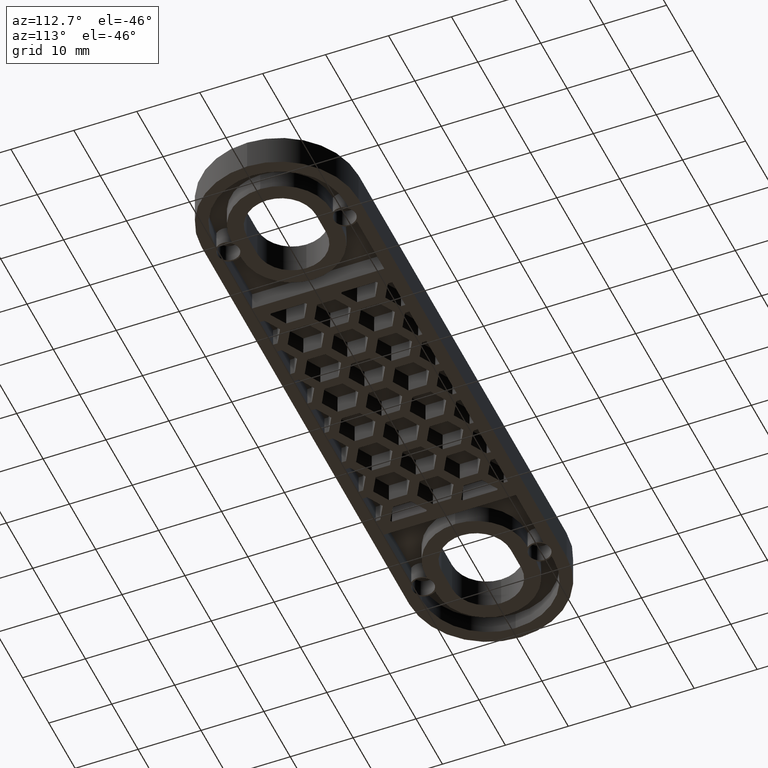
[diagram: clean part render]
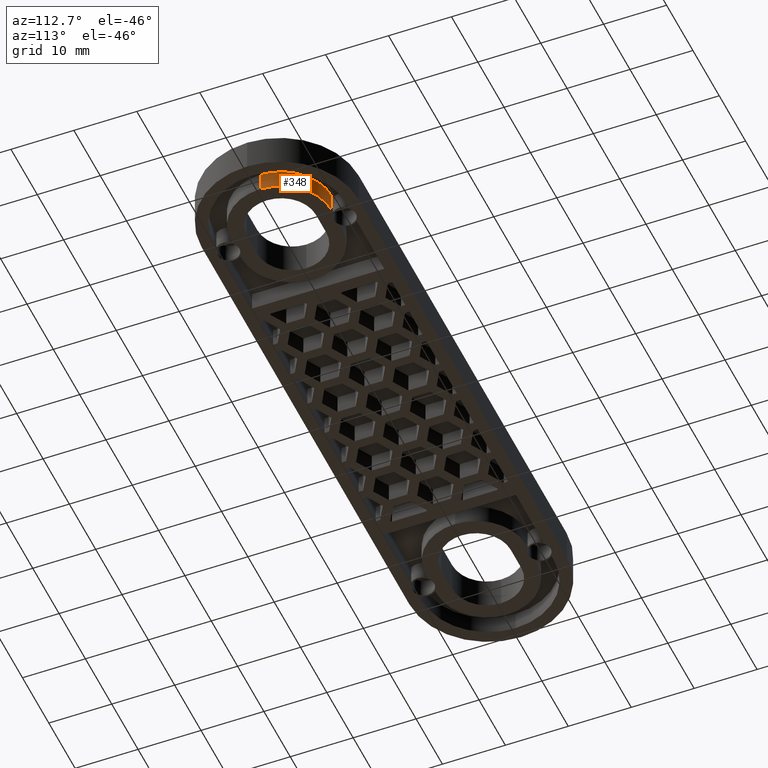
[diagram: same view with one face highlighted and labeled with its STEP entity id]
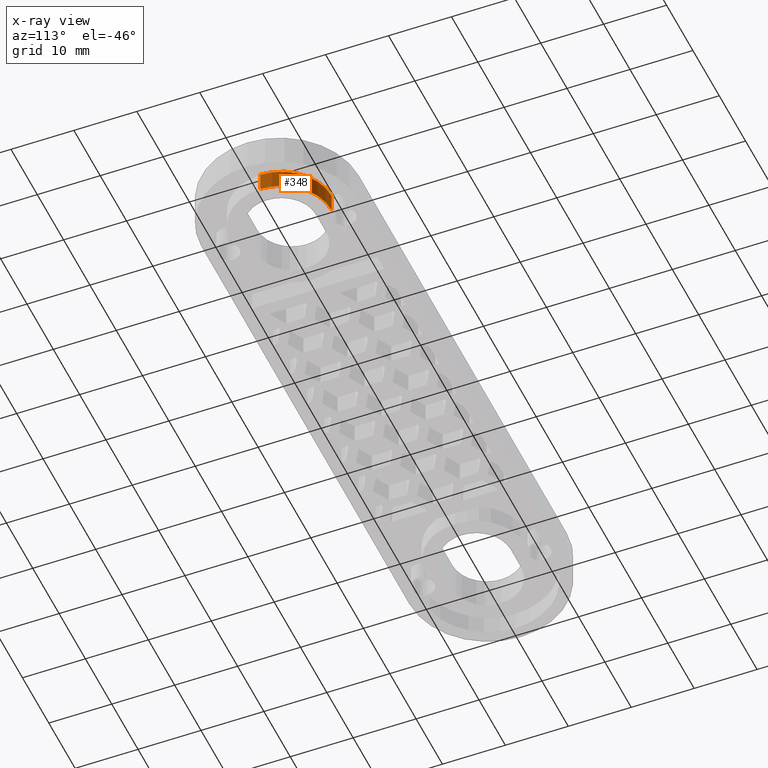
[diagram: x-ray of the same camera — body ghosted, the highlighted face saturated]
A machine part, auxiliary view. The second image highlights one B-rep face of the part: STEP entity #348.
The next image is the same camera in x-ray: the body ghosted, the highlighted face saturated — about 0% of this face is hidden behind the body in this view.
In plain terms, the highlighted cylindrical surface (partial cylindrical patch) has radius 8 mm, axis along (0, -0, -1).
Its self-contained STEP definition (entity closure, byte-faithful):
#348 = ADVANCED_FACE( '', ( #1035 ), #1036, .T. );
#1035 = FACE_OUTER_BOUND( '', #1801, .T. );
#1036 = CYLINDRICAL_SURFACE( '', #1802, 7.99999999999999 );
#1801 = EDGE_LOOP( '', ( #4174, #4175, #4176, #4177 ) );
#1802 = AXIS2_PLACEMENT_3D( '', #4178, #4179, #4180 );
#4174 = ORIENTED_EDGE( '', *, *, #5631, .T. );
#4175 = ORIENTED_EDGE( '', *, *, #5632, .T. );
#4176 = ORIENTED_EDGE( '', *, *, #5624, .F. );
#4177 = ORIENTED_EDGE( '', *, *, #4895, .T. );
#4178 = CARTESIAN_POINT( '', ( 39.0000000000000, 1.04083408558608E-014, -1.38777878078145E-014 ) );
#4179 = DIRECTION( '', ( 0.000000000000000, -6.12303176911189E-017, -1.00000000000000 ) );
#4180 = DIRECTION( '', ( -1.15648231731787E-016, 1.00000000000000, -6.12303176911189E-017 ) );
#4895 = EDGE_CURVE( '', #5878, #5876, #5879, .T. );
#5624 = EDGE_CURVE( '', #5878, #7094, #7095, .T. );
#5631 = EDGE_CURVE( '', #5876, #7103, #7104, .T. );
#5632 = EDGE_CURVE( '', #7103, #7094, #7105, .T. );
#5876 = VERTEX_POINT( '', #7424 );
#5878 = VERTEX_POINT( '', #7427 );
#5879 = CIRCLE( '', #7428, 7.99999999999999 );
#7094 = VERTEX_POINT( '', #9340 );
#7095 = LINE( '', #9341, #9342 );
#7103 = VERTEX_POINT( '', #9355 );
#7104 = LINE( '', #9356, #9357 );
#7105 = CIRCLE( '', #9358, 8.00000000000000 );
#7424 = CARTESIAN_POINT( '', ( 39.0000000000000, 8.00000000000001, -1.43676303493434E-014 ) );
#7427 = CARTESIAN_POINT( '', ( 47.0000000000000, 1.38777878078145E-014, -1.38777878078145E-014 ) );
#7428 = AXIS2_PLACEMENT_3D( '', #9635, #9636, #9637 );
#9340 = CARTESIAN_POINT( '', ( 47.0000000000000, 1.40614787608878E-014, 3.00000000000000 ) );
#9341 = CARTESIAN_POINT( '', ( 47.0000000000000, 1.38777878078145E-014, -1.38777878078145E-014 ) );
#9342 = VECTOR( '', #10428, 1000.00000000000 );
#9355 = CARTESIAN_POINT( '', ( 39.0000000000000, 8.00000000000001, 3.00000000000000 ) );
#9356 = CARTESIAN_POINT( '', ( 39.0000000000000, 8.00000000000001, -1.43676303493434E-014 ) );
#9357 = VECTOR( '', #10437, 1000.00000000000 );
#9358 = AXIS2_PLACEMENT_3D( '', #10438, #10439, #10440 );
#9635 = CARTESIAN_POINT( '', ( 39.0000000000000, 1.04083408558608E-014, -1.38777878078145E-014 ) );
#9636 = DIRECTION( '', ( 0.000000000000000, 6.12303176911189E-017, 1.00000000000000 ) );
#9637 = DIRECTION( '', ( 1.15648231731787E-016, -1.00000000000000, 6.12303176911189E-017 ) );
#10428 = DIRECTION( '', ( 0.000000000000000, 6.12303176911189E-017, 1.00000000000000 ) );
#10437 = DIRECTION( '', ( 0.000000000000000, 6.12303176911189E-017, 1.00000000000000 ) );
#10438 = CARTESIAN_POINT( '', ( 39.0000000000000, 1.05920318089342E-014, 3.00000000000000 ) );
#10439 = DIRECTION( '', ( 0.000000000000000, -6.12303176911189E-017, -1.00000000000000 ) );
#10440 = DIRECTION( '', ( 0.000000000000000, 1.00000000000000, -6.12303176911189E-017 ) );